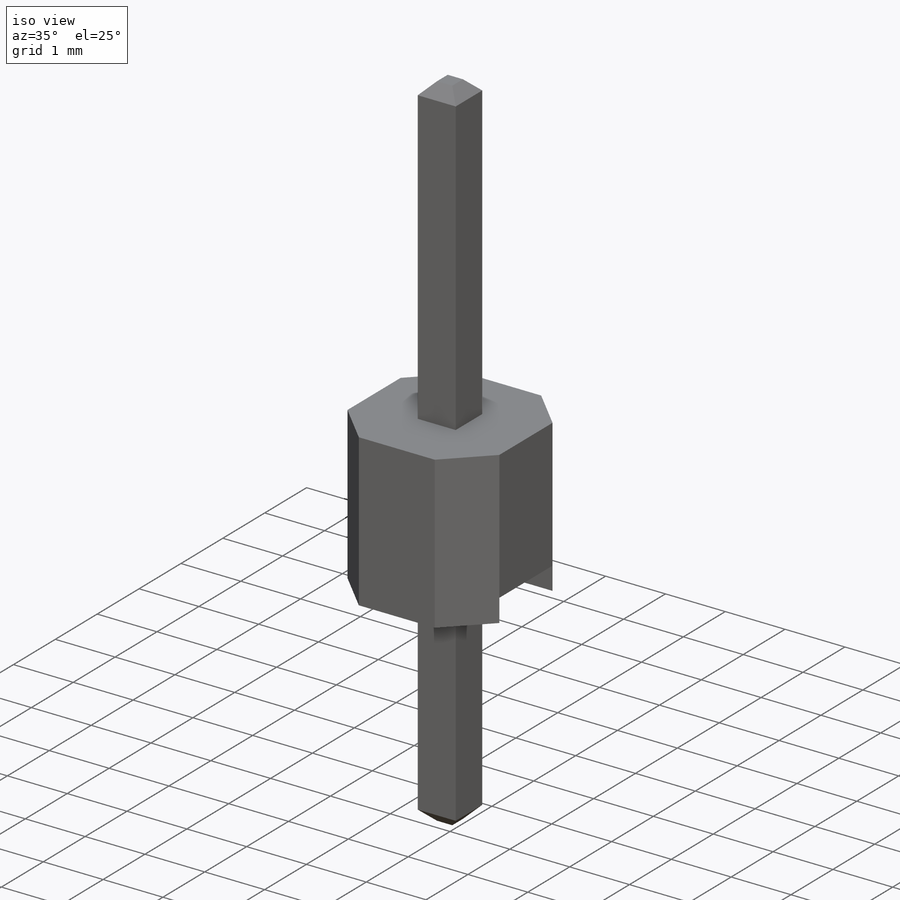
[diagram: iso view]
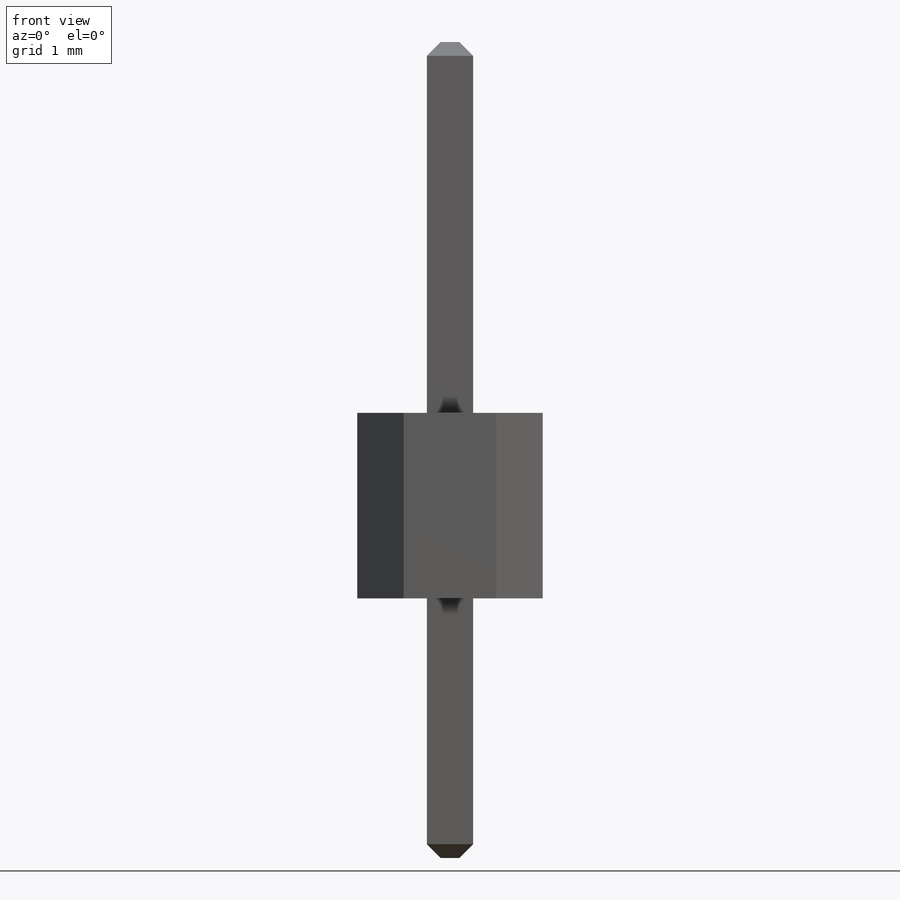
[diagram: front view]
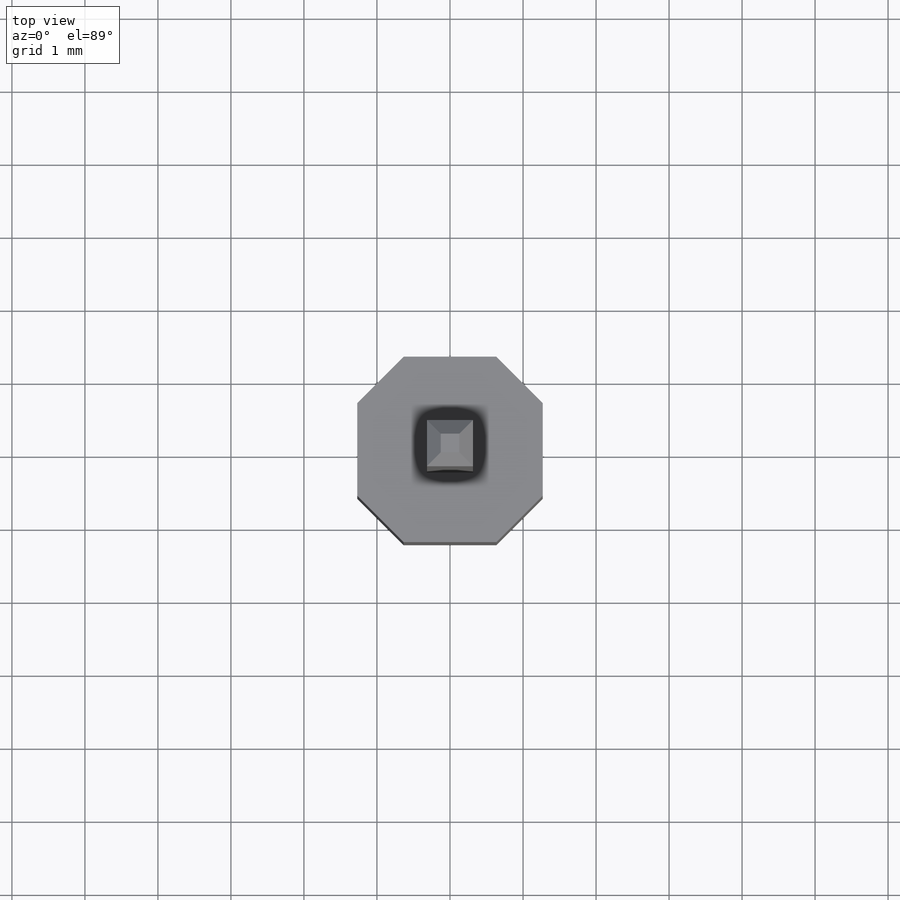
[diagram: top view]
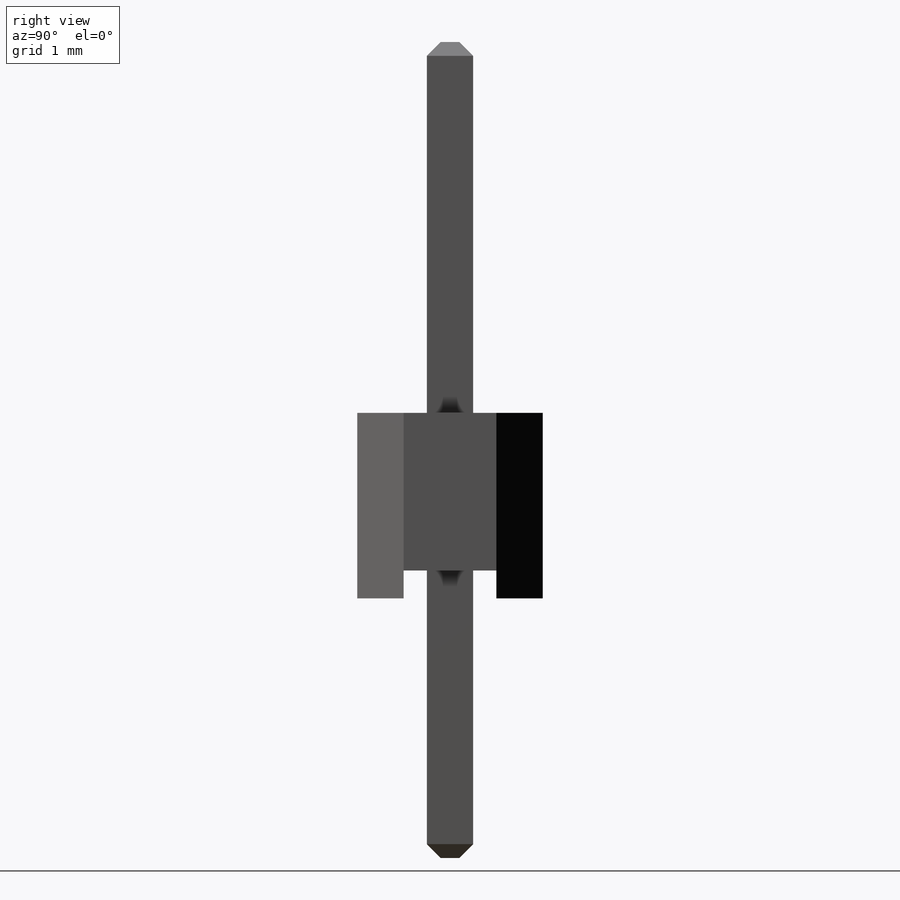
[diagram: right view]
SOLIDWORKS PART (.sldprt)
format: sldprt  version: not decoded by parser v0  size: 236,032 bytes
history: native  units: mm
features: sketch x4, extrude x3, chamfer x2, material x1, cut_extrude x1 (+12 scaffold rows collapsed)
feature tree (23):
  scaffold x12  (default folders/planes/origin — collapsed)
  material  "Material <not specified>"
  sketch  "Sketch1"  dims[D1=2.54mm D2=0.635mm D3=0.635mm D4=4.0]
  extrude  "Boss-Extrude1"  Depth=2.54mm
  sketch  "Sketch2"  dims[D1=0.762mm D2=1.27mm]
  cut_extrude  "Cut-Extrude1"  [1 undecoded]
  sketch  "Sketch3"  dims[D1=0.635mm]
  extrude  "Boss-Extrude2"  Depth=5.08mm
  chamfer  "Chamfer1"  Distance=0.1905mm Angle=45deg
  sketch  "Sketch4"  dims[D1=0.635mm]
  extrude  "Boss-Extrude3"  Depth=3.937mm
  chamfer  "Chamfer2"  Distance=0.1905mm Angle=45deg
decode coverage: 9 of 10 modeling features carry decoded parameters
note: 1 parameter value undecoded
note: suppression state not decoded; provenance and decode notes live in map.json
